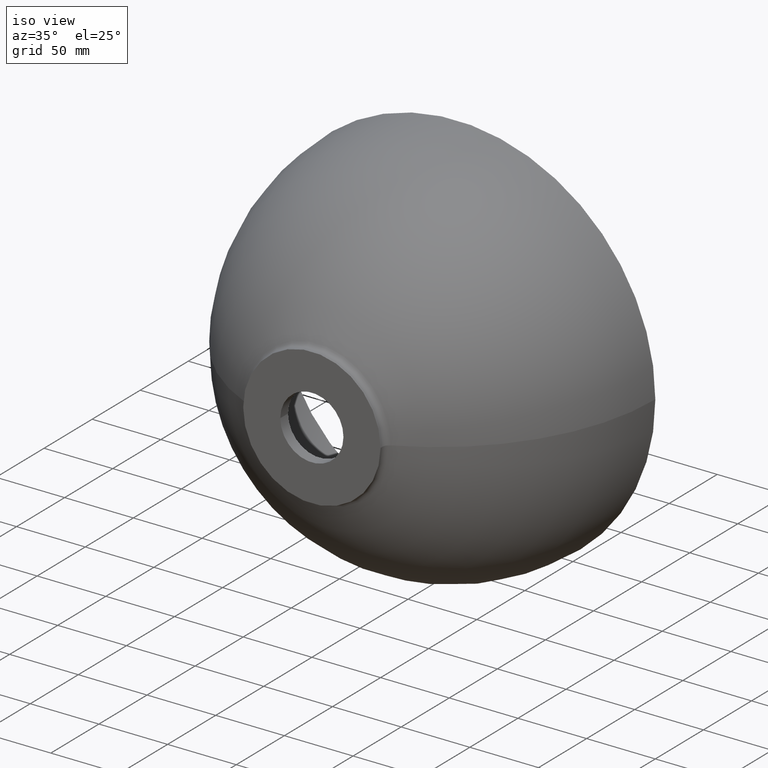
[diagram: clean part render]
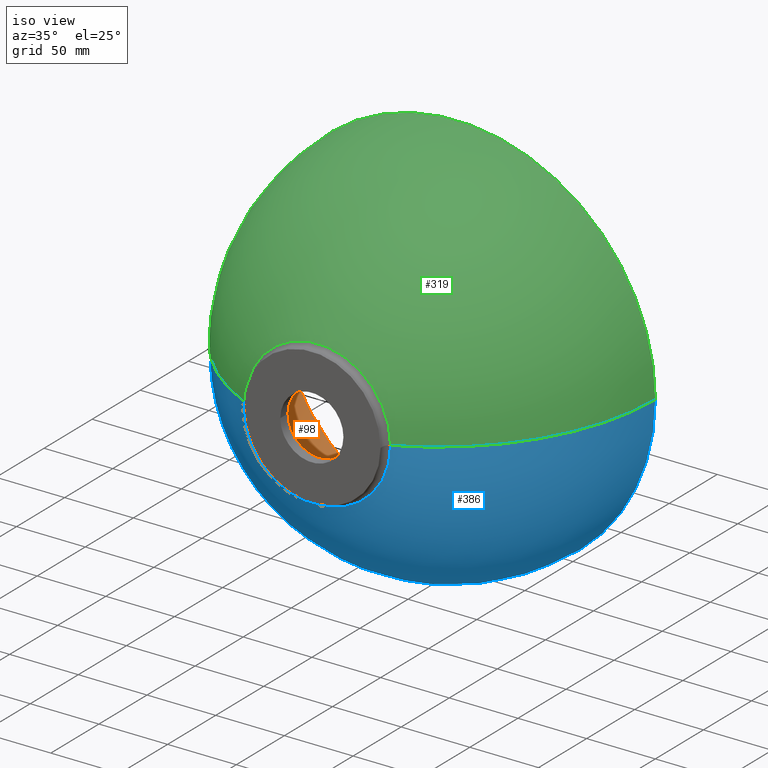
[diagram: same view with three faces highlighted in distinct colors, each labeled with its STEP entity id]
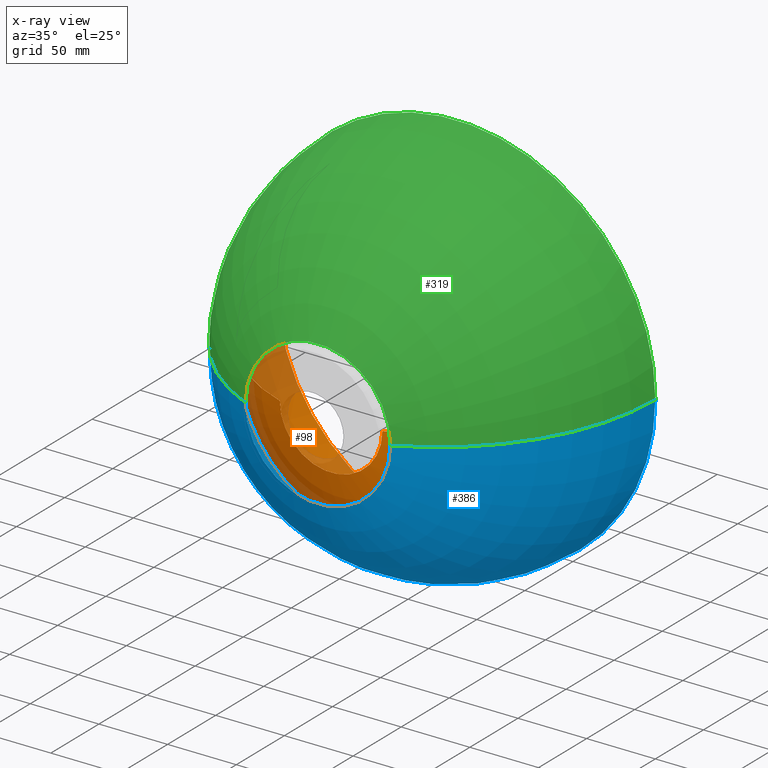
[diagram: x-ray of the same camera — body ghosted, the three highlighted faces saturated]
A machine part, iso view with three faces highlighted in distinct colors.
The next image is the same camera in x-ray (body ghosted, the three faces saturated) — at least one of them is partly hidden behind the body in this view.
Their STEP definitions:

[orange] entity #98 — the highlighted toroidal blend (fillet) surface has major radius 7.5048 mm and minor (blend) radius 137.505 mm.
#8 = DIRECTION ( 'NONE',  ( -1.000000000000000000, -1.104785946437366800E-016, 0.0000000000000000000 ) ) ;
#16 = DIRECTION ( 'NONE',  ( -1.224646799147353200E-016, -1.352972573047500600E-032, 1.000000000000000000 ) ) ;
#26 = VERTEX_POINT ( 'NONE', #292 ) ;
#43 = EDGE_CURVE ( 'NONE', #109, #384, #349, .T. ) ;
#55 = CARTESIAN_POINT ( 'NONE',  ( -7.504765230840313900, 150.0000000000000000, -9.190686718300936100E-016 ) ) ;
#63 = CIRCLE ( 'NONE', #412, 137.5047652308402600 ) ;
#65 = FACE_OUTER_BOUND ( 'NONE', #161, .T. ) ;
#83 = CARTESIAN_POINT ( 'NONE',  ( -37.30104311104391700, 19.99999999992751800, 0.0000000000000000000 ) ) ;
#90 = ORIENTED_EDGE ( 'NONE', *, *, #334, .F. ) ;
#95 = CARTESIAN_POINT ( 'NONE',  ( 129.9999999999999400, 150.0000000000000600, 1.592040838891558800E-014 ) ) ;
#98 = ADVANCED_FACE ( 'NONE', ( #65 ), #130, .F. ) ;
#104 = CIRCLE ( 'NONE', #142, 37.30104311104393100 ) ;
#106 = EDGE_CURVE ( 'NONE', #26, #109, #63, .T. ) ;
#109 = VERTEX_POINT ( 'NONE', #95 ) ;
#120 = CARTESIAN_POINT ( 'NONE',  ( -2.694001388746050500E-015, 150.0000000000000300, 0.0000000000000000000 ) ) ;
#130 = TOROIDAL_SURFACE ( 'NONE', #193, -7.504765230840311200, 137.5047652308402600 ) ;
#134 = CARTESIAN_POINT ( 'NONE',  ( 1.166821591494773100E-014, 19.99999999992752100, 0.0000000000000000000 ) ) ;
#141 = DIRECTION ( 'NONE',  ( -1.104785946437366900E-016, 1.000000000000000000, -0.0000000000000000000 ) ) ;
#142 = AXIS2_PLACEMENT_3D ( 'NONE', #134, #141, #166 ) ;
#161 = EDGE_LOOP ( 'NONE', ( #90, #346, #362, #411 ) ) ;
#166 = DIRECTION ( 'NONE',  ( -1.000000000000000000, -9.301206246766850400E-017, 0.0000000000000000000 ) ) ;
#183 = CIRCLE ( 'NONE', #218, 137.5047652308402600 ) ;
#184 = DIRECTION ( 'NONE',  ( -1.104785946437366900E-016, 1.000000000000000000, -0.0000000000000000000 ) ) ;
#193 = AXIS2_PLACEMENT_3D ( 'NONE', #325, #184, #8 ) ;
#209 = CARTESIAN_POINT ( 'NONE',  ( -129.9999999999999400, 150.0000000000000000, 0.0000000000000000000 ) ) ;
#218 = AXIS2_PLACEMENT_3D ( 'NONE', #416, #389, #388 ) ;
#219 = DIRECTION ( 'NONE',  ( -1.104785946437366900E-016, 1.000000000000000000, -0.0000000000000000000 ) ) ;
#251 = VERTEX_POINT ( 'NONE', #83 ) ;
#258 = DIRECTION ( 'NONE',  ( -1.000000000000000000, -2.135044278125302100E-016, 0.0000000000000000000 ) ) ;
#266 = EDGE_CURVE ( 'NONE', #251, #384, #183, .T. ) ;
#292 = CARTESIAN_POINT ( 'NONE',  ( 37.30104311104394600, 19.99999999992752500, 4.568060305079737500E-015 ) ) ;
#296 = AXIS2_PLACEMENT_3D ( 'NONE', #120, #219, #258 ) ;
#325 = CARTESIAN_POINT ( 'NONE',  ( -2.602085213965210600E-015, 150.0000000000000000, 0.0000000000000000000 ) ) ;
#334 = EDGE_CURVE ( 'NONE', #26, #251, #104, .T. ) ;
#346 = ORIENTED_EDGE ( 'NONE', *, *, #106, .T. ) ;
#349 = CIRCLE ( 'NONE', #296, 129.9999999999999400 ) ;
#362 = ORIENTED_EDGE ( 'NONE', *, *, #43, .T. ) ;
#384 = VERTEX_POINT ( 'NONE', #209 ) ;
#388 = DIRECTION ( 'NONE',  ( -1.000000000000000000, 0.0000000000000000000, 0.0000000000000000000 ) ) ;
#389 = DIRECTION ( 'NONE',  ( 0.0000000000000000000, -0.0000000000000000000, -1.000000000000000000 ) ) ;
#411 = ORIENTED_EDGE ( 'NONE', *, *, #266, .F. ) ;
#412 = AXIS2_PLACEMENT_3D ( 'NONE', #55, #16, #420 ) ;
#416 = CARTESIAN_POINT ( 'NONE',  ( 7.504765230840308600, 150.0000000000000000, 0.0000000000000000000 ) ) ;
#420 = DIRECTION ( 'NONE',  ( 1.000000000000000000, 0.0000000000000000000, 1.224646799147353200E-016 ) ) ;

[blue] entity #386 — the highlighted toroidal blend (fillet) surface has major radius 13.1579 mm and minor (blend) radius 158.158 mm.
#3 = DIRECTION ( 'NONE',  ( -1.104785946437366900E-016, 1.000000000000000000, -0.0000000000000000000 ) ) ;
#11 = CARTESIAN_POINT ( 'NONE',  ( -2.694001388746047700E-015, 150.0000000000000300, 0.0000000000000000000 ) ) ;
#17 = EDGE_CURVE ( 'NONE', #97, #302, #68, .T. ) ;
#18 = CARTESIAN_POINT ( 'NONE',  ( 13.15789473684205600, 150.0000000000000000, 0.0000000000000000000 ) ) ;
#35 = TOROIDAL_SURFACE ( 'NONE', #177, -13.15789473684206000, 158.1578947368420800 ) ;
#51 = DIRECTION ( 'NONE',  ( -1.104785946437366900E-016, 1.000000000000000000, -0.0000000000000000000 ) ) ;
#59 = EDGE_LOOP ( 'NONE', ( #324, #60, #155, #260 ) ) ;
#60 = ORIENTED_EDGE ( 'NONE', *, *, #352, .T. ) ;
#68 = CIRCLE ( 'NONE', #117, 158.1578947368420800 ) ;
#71 = EDGE_CURVE ( 'NONE', #220, #375, #114, .T. ) ;
#84 = DIRECTION ( 'NONE',  ( -1.224646799147353200E-016, -1.352972573047500600E-032, 1.000000000000000000 ) ) ;
#93 = CARTESIAN_POINT ( 'NONE',  ( 52.91129032258075400, 6.303157817668914500, 1.211857141043355500E-014 ) ) ;
#97 = VERTEX_POINT ( 'NONE', #93 ) ;
#114 = CIRCLE ( 'NONE', #405, 158.1578947368420800 ) ;
#117 = AXIS2_PLACEMENT_3D ( 'NONE', #382, #84, #327 ) ;
#119 = EDGE_CURVE ( 'NONE', #302, #375, #149, .T. ) ;
#133 = FACE_OUTER_BOUND ( 'NONE', #59, .T. ) ;
#136 = DIRECTION ( 'NONE',  ( -1.000000000000000000, -1.147492742834831600E-016, 0.0000000000000000000 ) ) ;
#149 = CIRCLE ( 'NONE', #284, 145.0000000000000000 ) ;
#155 = ORIENTED_EDGE ( 'NONE', *, *, #71, .T. ) ;
#162 = DIRECTION ( 'NONE',  ( -1.000000000000000000, -1.104785946437366800E-016, 0.0000000000000000000 ) ) ;
#177 = AXIS2_PLACEMENT_3D ( 'NONE', #339, #400, #162 ) ;
#220 = VERTEX_POINT ( 'NONE', #422 ) ;
#232 = AXIS2_PLACEMENT_3D ( 'NONE', #434, #3, #136 ) ;
#260 = ORIENTED_EDGE ( 'NONE', *, *, #119, .F. ) ;
#284 = AXIS2_PLACEMENT_3D ( 'NONE', #11, #51, #395 ) ;
#302 = VERTEX_POINT ( 'NONE', #370 ) ;
#324 = ORIENTED_EDGE ( 'NONE', *, *, #17, .F. ) ;
#327 = DIRECTION ( 'NONE',  ( 1.000000000000000000, 0.0000000000000000000, 1.224646799147353200E-016 ) ) ;
#328 = CIRCLE ( 'NONE', #232, 52.91129032258073300 ) ;
#339 = CARTESIAN_POINT ( 'NONE',  ( -3.469446951953614200E-015, 150.0000000000000000, 0.0000000000000000000 ) ) ;
#352 = EDGE_CURVE ( 'NONE', #97, #220, #328, .T. ) ;
#370 = CARTESIAN_POINT ( 'NONE',  ( 145.0000000000000300, 150.0000000000000600, 1.775737858763661900E-014 ) ) ;
#375 = VERTEX_POINT ( 'NONE', #404 ) ;
#382 = CARTESIAN_POINT ( 'NONE',  ( -13.15789473684206400, 150.0000000000000000, -1.611377367299143200E-015 ) ) ;
#386 = ADVANCED_FACE ( 'NONE', ( #133 ), #35, .T. ) ;
#394 = DIRECTION ( 'NONE',  ( -1.000000000000000000, 0.0000000000000000000, 0.0000000000000000000 ) ) ;
#395 = DIRECTION ( 'NONE',  ( -1.000000000000000000, -1.914177628664062900E-016, 0.0000000000000000000 ) ) ;
#400 = DIRECTION ( 'NONE',  ( -1.104785946437366900E-016, 1.000000000000000000, -0.0000000000000000000 ) ) ;
#404 = CARTESIAN_POINT ( 'NONE',  ( -145.0000000000000300, 150.0000000000000000, 0.0000000000000000000 ) ) ;
#405 = AXIS2_PLACEMENT_3D ( 'NONE', #18, #421, #394 ) ;
#421 = DIRECTION ( 'NONE',  ( 0.0000000000000000000, -0.0000000000000000000, -1.000000000000000000 ) ) ;
#422 = CARTESIAN_POINT ( 'NONE',  ( -52.91129032258071900, 6.303157817668902000, 0.0000000000000000000 ) ) ;
#434 = CARTESIAN_POINT ( 'NONE',  ( 1.318142379030071500E-014, 6.303157817668908300, 0.0000000000000000000 ) ) ;

[green] entity #319 — the highlighted toroidal blend (fillet) surface has major radius 13.1579 mm and minor (blend) radius 158.158 mm.
#4 = ORIENTED_EDGE ( 'NONE', *, *, #17, .T. ) ;
#10 = AXIS2_PLACEMENT_3D ( 'NONE', #72, #347, #66 ) ;
#17 = EDGE_CURVE ( 'NONE', #97, #302, #68, .T. ) ;
#18 = CARTESIAN_POINT ( 'NONE',  ( 13.15789473684205600, 150.0000000000000000, 0.0000000000000000000 ) ) ;
#33 = FACE_OUTER_BOUND ( 'NONE', #340, .T. ) ;
#37 = TOROIDAL_SURFACE ( 'NONE', #82, -13.15789473684206000, 158.1578947368420800 ) ;
#66 = DIRECTION ( 'NONE',  ( -1.000000000000000000, -1.914177628664062900E-016, 0.0000000000000000000 ) ) ;
#68 = CIRCLE ( 'NONE', #117, 158.1578947368420800 ) ;
#71 = EDGE_CURVE ( 'NONE', #220, #375, #114, .T. ) ;
#72 = CARTESIAN_POINT ( 'NONE',  ( -2.694001388746047700E-015, 150.0000000000000300, 0.0000000000000000000 ) ) ;
#82 = AXIS2_PLACEMENT_3D ( 'NONE', #431, #275, #435 ) ;
#84 = DIRECTION ( 'NONE',  ( -1.224646799147353200E-016, -1.352972573047500600E-032, 1.000000000000000000 ) ) ;
#93 = CARTESIAN_POINT ( 'NONE',  ( 52.91129032258075400, 6.303157817668914500, 1.211857141043355500E-014 ) ) ;
#97 = VERTEX_POINT ( 'NONE', #93 ) ;
#114 = CIRCLE ( 'NONE', #405, 158.1578947368420800 ) ;
#117 = AXIS2_PLACEMENT_3D ( 'NONE', #382, #84, #327 ) ;
#138 = CIRCLE ( 'NONE', #256, 52.91129032258073300 ) ;
#139 = EDGE_CURVE ( 'NONE', #220, #97, #138, .T. ) ;
#144 = ORIENTED_EDGE ( 'NONE', *, *, #71, .F. ) ;
#220 = VERTEX_POINT ( 'NONE', #422 ) ;
#256 = AXIS2_PLACEMENT_3D ( 'NONE', #295, #430, #338 ) ;
#275 = DIRECTION ( 'NONE',  ( -1.104785946437366900E-016, 1.000000000000000000, -0.0000000000000000000 ) ) ;
#281 = ORIENTED_EDGE ( 'NONE', *, *, #374, .F. ) ;
#295 = CARTESIAN_POINT ( 'NONE',  ( 1.318142379030071500E-014, 6.303157817668908300, 0.0000000000000000000 ) ) ;
#302 = VERTEX_POINT ( 'NONE', #370 ) ;
#319 = ADVANCED_FACE ( 'NONE', ( #33 ), #37, .T. ) ;
#327 = DIRECTION ( 'NONE',  ( 1.000000000000000000, 0.0000000000000000000, 1.224646799147353200E-016 ) ) ;
#338 = DIRECTION ( 'NONE',  ( -1.000000000000000000, -1.147492742834831600E-016, 0.0000000000000000000 ) ) ;
#340 = EDGE_LOOP ( 'NONE', ( #353, #4, #281, #144 ) ) ;
#344 = CIRCLE ( 'NONE', #10, 145.0000000000000000 ) ;
#347 = DIRECTION ( 'NONE',  ( -1.104785946437366900E-016, 1.000000000000000000, -0.0000000000000000000 ) ) ;
#353 = ORIENTED_EDGE ( 'NONE', *, *, #139, .T. ) ;
#370 = CARTESIAN_POINT ( 'NONE',  ( 145.0000000000000300, 150.0000000000000600, 1.775737858763661900E-014 ) ) ;
#374 = EDGE_CURVE ( 'NONE', #375, #302, #344, .T. ) ;
#375 = VERTEX_POINT ( 'NONE', #404 ) ;
#382 = CARTESIAN_POINT ( 'NONE',  ( -13.15789473684206400, 150.0000000000000000, -1.611377367299143200E-015 ) ) ;
#394 = DIRECTION ( 'NONE',  ( -1.000000000000000000, 0.0000000000000000000, 0.0000000000000000000 ) ) ;
#404 = CARTESIAN_POINT ( 'NONE',  ( -145.0000000000000300, 150.0000000000000000, 0.0000000000000000000 ) ) ;
#405 = AXIS2_PLACEMENT_3D ( 'NONE', #18, #421, #394 ) ;
#421 = DIRECTION ( 'NONE',  ( 0.0000000000000000000, -0.0000000000000000000, -1.000000000000000000 ) ) ;
#422 = CARTESIAN_POINT ( 'NONE',  ( -52.91129032258071900, 6.303157817668902000, 0.0000000000000000000 ) ) ;
#430 = DIRECTION ( 'NONE',  ( -1.104785946437366900E-016, 1.000000000000000000, -0.0000000000000000000 ) ) ;
#431 = CARTESIAN_POINT ( 'NONE',  ( -3.469446951953614200E-015, 150.0000000000000000, 0.0000000000000000000 ) ) ;
#435 = DIRECTION ( 'NONE',  ( -1.000000000000000000, -1.104785946437366800E-016, 0.0000000000000000000 ) ) ;